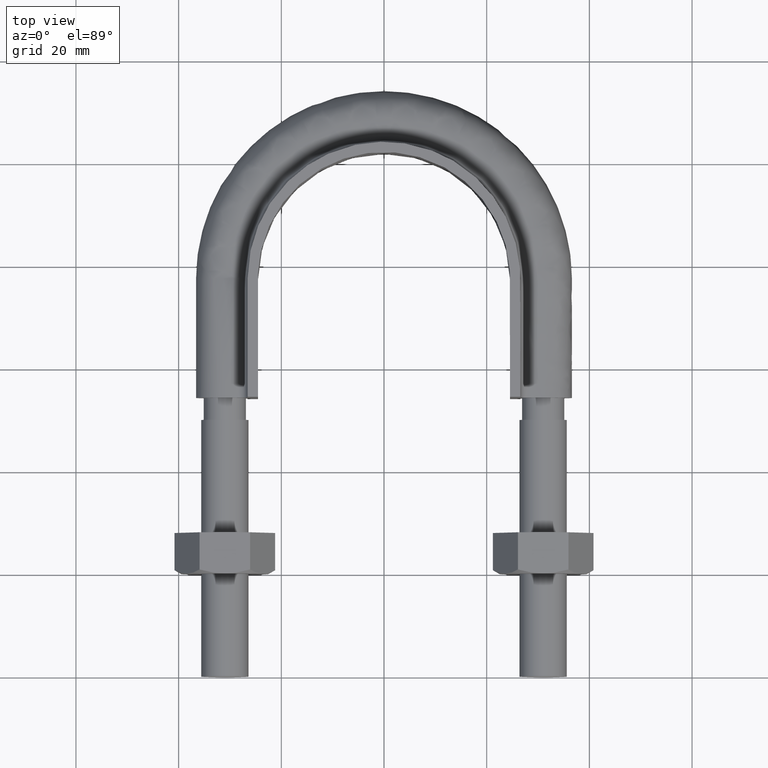
[diagram: clean part render]
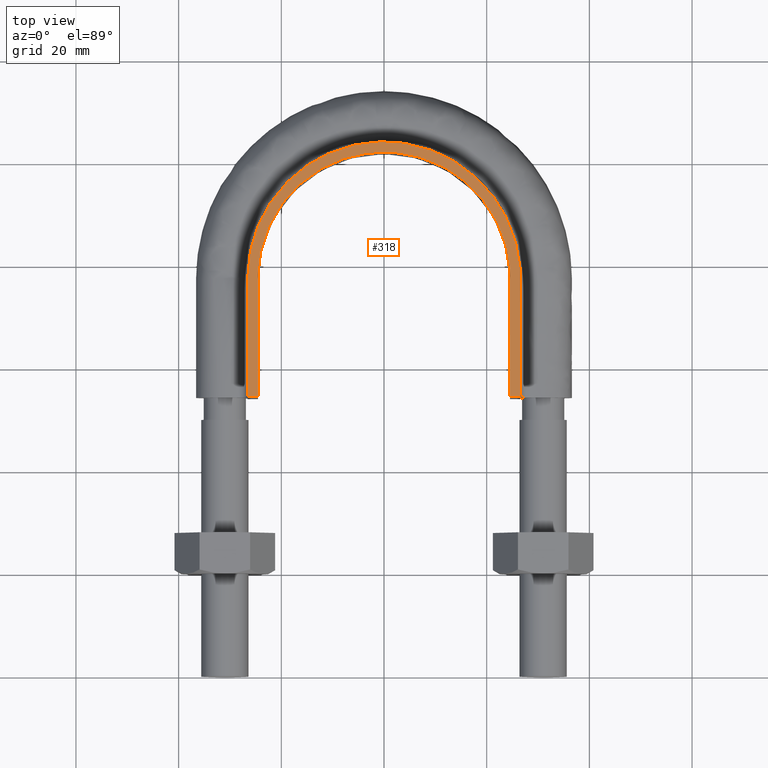
[diagram: same view with one face highlighted and labeled with its STEP entity id]
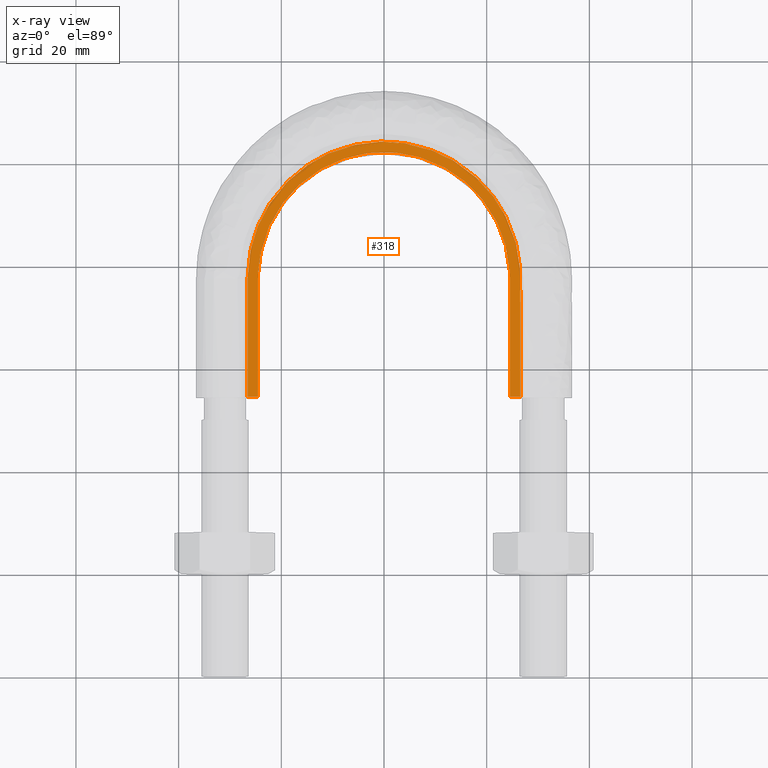
[diagram: x-ray of the same camera — body ghosted, the highlighted face saturated]
A machine part, top view. The second image highlights one B-rep face of the part: STEP entity #318.
The next image is the same camera in x-ray: the body ghosted, the highlighted face saturated — about 0% of this face is hidden behind the body in this view.
In plain terms, the highlighted planar face has unit normal (0, 0, 1).
Its self-contained STEP definition (entity closure, byte-faithful):
#318 = ADVANCED_FACE( '', ( #402 ), #403, .T. );
#402 = FACE_OUTER_BOUND( '', #577, .T. );
#403 = PLANE( '', #578 );
#577 = EDGE_LOOP( '', ( #1605, #1606, #1607, #1608 ) );
#578 = AXIS2_PLACEMENT_3D( '', #1609, #1610, #1611 );
#1605 = ORIENTED_EDGE( '', *, *, #2113, .T. );
#1606 = ORIENTED_EDGE( '', *, *, #2122, .F. );
#1607 = ORIENTED_EDGE( '', *, *, #2117, .T. );
#1608 = ORIENTED_EDGE( '', *, *, #2123, .T. );
#1609 = CARTESIAN_POINT( '', ( 40.0000000000000, 124.300000000000, 12.5000000000000 ) );
#1610 = DIRECTION( '', ( 0.000000000000000, 0.000000000000000, 1.00000000000000 ) );
#1611 = DIRECTION( '', ( 1.22460635382238E-016, 1.00000000000000, 0.000000000000000 ) );
#2113 = EDGE_CURVE( '', #2268, #2265, #2269, .T. );
#2117 = EDGE_CURVE( '', #2275, #2276, #2277, .T. );
#2122 = EDGE_CURVE( '', #2275, #2265, #2284, .T. );
#2123 = EDGE_CURVE( '', #2276, #2268, #2285, .F. );
#2265 = VERTEX_POINT( '', #2524 );
#2268 = VERTEX_POINT( '', #2528 );
#2269 = LINE( '', #2529, #2530 );
#2275 = VERTEX_POINT( '', #2576 );
#2276 = VERTEX_POINT( '', #2577 );
#2277 = LINE( '', #2578, #2579 );
#2284 = B_SPLINE_CURVE_WITH_KNOTS( '', 3, ( #2634, #2635, #2636, #2637, #2638, #2639, #2640, #2641, #2642, #2643, #2644, #2645, #2646, #2647, #2648, #2649, #2650, #2651, #2652, #2653, #2654, #2655, #2656, #2657, #2658, #2659, #2660, #2661, #2662, #2663, #2664, #2665, #2666, #2667, #2668, #2669, #2670, #2671, #2672, #2673, #2674, #2675, #2676, #2677, #2678, #2679, #2680, #2681, #2682, #2683, #2684, #2685, #2686, #2687, #2688, #2689, #2690, #2691, #2692, #2693, #2694, #2695, #2696, #2697, #2698, #2699, #2700 ), .UNSPECIFIED., .F., .F., ( 4, 1, 2, 2, 2, 2, 2, 2, 2, 2, 2, 2, 2, 2, 2, 2, 2, 2, 2, 2, 2, 2, 2, 2, 2, 2, 2, 2, 2, 2, 2, 2, 1, 1, 4 ), ( 0.000000000000000, 0.0154145326467005, 0.0231217989700507, 0.0250486155508883, 0.0269754321317259, 0.0308290652934011, 0.0346826984550763, 0.0366095150359139, 0.0385363316167515, 0.0423899647784266, 0.0443167813592642, 0.0462435979401018, 0.0500972311017769, 0.0520240476826145, 0.0539508642634520, 0.0578044974251271, 0.0597313140059646, 0.0616581305868022, 0.0655117637484773, 0.0674385803293148, 0.0693653969101523, 0.0732190300718274, 0.0751458466526650, 0.0770726632335025, 0.0809262963951776, 0.0828531129760152, 0.0847799295568527, 0.0924871958802029, 0.0944140124610405, 0.0963408290418780, 0.100194462203553, 0.102121278784391, 0.104048095365228, 0.107901728526903, 0.123316261173604 ), .UNSPECIFIED. );
#2285 = B_SPLINE_CURVE_WITH_KNOTS( '', 3, ( #2701, #2702, #2703, #2704, #2705, #2706, #2707, #2708, #2709, #2710, #2711, #2712, #2713, #2714, #2715, #2716, #2717 ), .UNSPECIFIED., .F., .F., ( 4, 3, 1, 1, 1, 1, 1, 1, 1, 3, 4 ), ( 0.145756457564576, 1.00000000000000, 1.50000000000000, 2.00000000000000, 3.00000000000000, 4.00000000000000, 5.00000000000000, 6.00000000000000, 6.50000000000000, 7.00000000000000, 7.85424354243542 ), .UNSPECIFIED. );
#2524 = CARTESIAN_POINT( '', ( -24.5500000000000, 54.3000000000000, 12.5000000000000 ) );
#2528 = CARTESIAN_POINT( '', ( -26.5500000000000, 54.3000000000000, 12.5000000000000 ) );
#2529 = CARTESIAN_POINT( '', ( -40.0000000000000, 54.3000000000000, 12.5000000000000 ) );
#2530 = VECTOR( '', #3176, 1000.00000000000 );
#2576 = CARTESIAN_POINT( '', ( 24.5500000000000, 54.3000000000000, 12.5000000000000 ) );
#2577 = CARTESIAN_POINT( '', ( 26.5500000000000, 54.3000000000000, 12.5000000000000 ) );
#2578 = CARTESIAN_POINT( '', ( -40.0000000000000, 54.3000000000000, 12.5000000000000 ) );
#2579 = VECTOR( '', #3178, 1000.00000000000 );
#2634 = CARTESIAN_POINT( '', ( 24.5500000000000, 54.3000000000000, 12.5000000000000 ) );
#2635 = CARTESIAN_POINT( '', ( 24.5500000000000, 59.4384221999800, 12.5000000000000 ) );
#2636 = CARTESIAN_POINT( '', ( 24.5500000000000, 67.1460554999500, 12.5000000000000 ) );
#2637 = CARTESIAN_POINT( '', ( 24.5500000000000, 74.8536887999200, 12.5000000000000 ) );
#2638 = CARTESIAN_POINT( '', ( 24.5500000000000, 78.0652026749075, 12.5000000000000 ) );
#2639 = CARTESIAN_POINT( '', ( 24.5252751330927, 78.7072641688935, 12.5000000000000 ) );
#2640 = CARTESIAN_POINT( '', ( 24.4234462537603, 79.9908760077758, 12.5000000000000 ) );
#2641 = CARTESIAN_POINT( '', ( 24.3467657946690, 80.6342202589337, 12.5000000000000 ) );
#2642 = CARTESIAN_POINT( '', ( 24.0418819320212, 82.5512040485105, 12.5000000000000 ) );
#2643 = CARTESIAN_POINT( '', ( 23.7423938741594, 83.7980756143651, 12.5000000000000 ) );
#2644 = CARTESIAN_POINT( '', ( 22.9567434107525, 86.2314557302550, 12.5000000000000 ) );
#2645 = CARTESIAN_POINT( '', ( 22.4705596365818, 87.4179573705317, 12.5000000000000 ) );
#2646 = CARTESIAN_POINT( '', ( 21.5925627875953, 89.1496193486760, 12.5000000000000 ) );
#2647 = CARTESIAN_POINT( '', ( 21.2766071075014, 89.7149736051725, 12.5000000000000 ) );
#2648 = CARTESIAN_POINT( '', ( 20.6053719022684, 90.8105348664258, 12.5000000000000 ) );
#2649 = CARTESIAN_POINT( '', ( 20.2492833691970, 91.3426982596921, 12.5000000000000 ) );
#2650 = CARTESIAN_POINT( '', ( 19.1215068537777, 92.8937876646727, 12.5000000000000 ) );
#2651 = CARTESIAN_POINT( '', ( 18.2907926568853, 93.8676826796255, 12.5000000000000 ) );
#2652 = CARTESIAN_POINT( '', ( 16.9250762587395, 95.2372481605127, 12.5000000000000 ) );
#2653 = CARTESIAN_POINT( '', ( 16.4483141734126, 95.6794580763296, 12.5000000000000 ) );
#2654 = CARTESIAN_POINT( '', ( 15.4703087185621, 96.5179842065182, 12.5000000000000 ) );
#2655 = CARTESIAN_POINT( '', ( 14.9674075928234, 96.9161548866917, 12.5000000000000 ) );
#2656 = CARTESIAN_POINT( '', ( 13.4174319314452, 98.0480315871901, 12.5000000000000 ) );
#2657 = CARTESIAN_POINT( '', ( 12.3291014903936, 98.7191271240917, 12.5000000000000 ) );
#2658 = CARTESIAN_POINT( '', ( 10.6113550739498, 99.5963928065053, 12.5000000000000 ) );
#2659 = CARTESIAN_POINT( '', ( 10.0221200459752, 99.8683847934331, 12.5000000000000 ) );
#2660 = CARTESIAN_POINT( '', ( 8.82789979738713, 100.363314078471, 12.5000000000000 ) );
#2661 = CARTESIAN_POINT( '', ( 8.22453257139357, 100.585861709962, 12.5000000000000 ) );
#2662 = CARTESIAN_POINT( '', ( 6.39627757875420, 101.181214530966, 12.5000000000000 ) );
#2663 = CARTESIAN_POINT( '', ( 5.15338195845830, 101.482308901390, 12.5000000000000 ) );
#2664 = CARTESIAN_POINT( '', ( 3.25266287101841, 101.789095428283, 12.5000000000000 ) );
#2665 = CARTESIAN_POINT( '', ( 2.61299113566845, 101.867071354940, 12.5000000000000 ) );
#2666 = CARTESIAN_POINT( '', ( 1.32093241036632, 101.972388560719, 12.5000000000000 ) );
#2667 = CARTESIAN_POINT( '', ( 0.676406080425042, 101.999046675169, 12.5000000000000 ) );
#2668 = CARTESIAN_POINT( '', ( -1.24870371014289, 102.001831348721, 12.5000000000000 ) );
#2669 = CARTESIAN_POINT( '', ( -2.52265182528389, 101.901467818298, 12.5000000000000 ) );
#2670 = CARTESIAN_POINT( '', ( -4.41989760294863, 101.603117496314, 12.5000000000000 ) );
#2671 = CARTESIAN_POINT( '', ( -5.05001948103532, 101.478882110562, 12.5000000000000 ) );
#2672 = CARTESIAN_POINT( '', ( -6.30559148152664, 101.179922232146, 12.5000000000000 ) );
#2673 = CARTESIAN_POINT( '', ( -6.93138081059489, 101.004801946248, 12.5000000000000 ) );
#2674 = CARTESIAN_POINT( '', ( -8.76889753233644, 100.412561446254, 12.5000000000000 ) );
#2675 = CARTESIAN_POINT( '', ( -9.95225725658830, 99.9267801345634, 12.5000000000000 ) );
#2676 = CARTESIAN_POINT( '', ( -11.6646188489648, 99.0612380840055, 12.5000000000000 ) );
#2677 = CARTESIAN_POINT( '', ( -12.2248697137770, 98.7497158527538, 12.5000000000000 ) );
#2678 = CARTESIAN_POINT( '', ( -13.3236776153922, 98.0792985269674, 12.5000000000000 ) );
#2679 = CARTESIAN_POINT( '', ( -13.8646027205756, 97.7187643121761, 12.5000000000000 ) );
#2680 = CARTESIAN_POINT( '', ( -15.4323331862349, 96.5816103428784, 12.5000000000000 ) );
#2681 = CARTESIAN_POINT( '', ( -16.4066904175185, 95.7499313198934, 12.5000000000000 ) );
#2682 = CARTESIAN_POINT( '', ( -17.7664797273136, 94.3966709647585, 12.5000000000000 ) );
#2683 = CARTESIAN_POINT( '', ( -18.2026751411942, 93.9278462929921, 12.5000000000000 ) );
#2684 = CARTESIAN_POINT( '', ( -19.0403725195660, 92.9541411916241, 12.5000000000000 ) );
#2685 = CARTESIAN_POINT( '', ( -19.4425779981798, 92.4483024401624, 12.5000000000000 ) );
#2686 = CARTESIAN_POINT( '', ( -21.3557319354796, 89.8353834350349, 12.5000000000000 ) );
#2687 = CARTESIAN_POINT( '', ( -22.5176023500941, 87.5595033352519, 12.5000000000000 ) );
#2688 = CARTESIAN_POINT( '', ( -23.5216696114527, 84.4890361381941, 12.5000000000000 ) );
#2689 = CARTESIAN_POINT( '', ( -23.6990122608683, 83.8647462965356, 12.5000000000000 ) );
#2690 = CARTESIAN_POINT( '', ( -24.0024245935730, 82.6147239867792, 12.5000000000000 ) );
#2691 = CARTESIAN_POINT( '', ( -24.1294131227665, 81.9864283058244, 12.5000000000000 ) );
#2692 = CARTESIAN_POINT( '', ( -24.4371992964721, 80.0918170449201, 12.5000000000000 ) );
#2693 = CARTESIAN_POINT( '', ( -24.5457173567177, 78.8158968179807, 12.5000000000000 ) );
#2694 = CARTESIAN_POINT( '', ( -24.5519571685428, 76.8812155098233, 12.5000000000000 ) );
#2695 = CARTESIAN_POINT( '', ( -24.5500000000000, 76.2357852822296, 12.5000000000000 ) );
#2696 = CARTESIAN_POINT( '', ( -24.5500000000000, 74.9454449715102, 12.5000000000000 ) );
#2697 = CARTESIAN_POINT( '', ( -24.5500000000000, 73.0099345054311, 12.5000000000000 ) );
#2698 = CARTESIAN_POINT( '', ( -24.5500000000000, 65.9130627964745, 12.5000000000000 ) );
#2699 = CARTESIAN_POINT( '', ( -24.5500000000000, 59.4613612428776, 12.5000000000000 ) );
#2700 = CARTESIAN_POINT( '', ( -24.5500000000000, 54.3000000000000, 12.5000000000000 ) );
#2701 = CARTESIAN_POINT( '', ( -26.5500000000000, 54.3000000000000, 12.5000000000000 ) );
#2702 = CARTESIAN_POINT( '', ( -26.5500000000000, 62.0166666666667, 12.5000000000000 ) );
#2703 = CARTESIAN_POINT( '', ( -26.5500000000000, 69.7333333333333, 12.5000000000000 ) );
#2704 = CARTESIAN_POINT( '', ( -26.5500000000000, 77.4500000000000, 12.5000000000000 ) );
#2705 = CARTESIAN_POINT( '', ( -26.5500000000000, 79.7566352991258, 12.5000000000000 ) );
#2706 = CARTESIAN_POINT( '', ( -25.9278217826460, 84.4015410955847, 12.5000000000000 ) );
#2707 = CARTESIAN_POINT( '', ( -22.3733615438456, 93.0387447403505, 12.5000000000000 ) );
#2708 = CARTESIAN_POINT( '', ( -13.8952542493119, 101.518591858921, 12.5000000000000 ) );
#2709 = CARTESIAN_POINT( '', ( 2.02604182614537E-014, 105.240704070539, 12.5000000000000 ) );
#2710 = CARTESIAN_POINT( '', ( 13.8952542493119, 101.518591858921, 12.5000000000000 ) );
#2711 = CARTESIAN_POINT( '', ( 22.3733615438457, 93.0387447403505, 12.5000000000000 ) );
#2712 = CARTESIAN_POINT( '', ( 25.9278217826460, 84.4015410955847, 12.5000000000000 ) );
#2713 = CARTESIAN_POINT( '', ( 26.5500000000000, 79.7566352991258, 12.5000000000000 ) );
#2714 = CARTESIAN_POINT( '', ( 26.5500000000000, 77.4500000000000, 12.5000000000000 ) );
#2715 = CARTESIAN_POINT( '', ( 26.5500000000000, 69.7333333333333, 12.5000000000000 ) );
#2716 = CARTESIAN_POINT( '', ( 26.5500000000000, 62.0166666666667, 12.5000000000000 ) );
#2717 = CARTESIAN_POINT( '', ( 26.5500000000000, 54.3000000000000, 12.5000000000000 ) );
#3176 = DIRECTION( '', ( 1.00000000000000, -1.22460635382238E-016, 0.000000000000000 ) );
#3178 = DIRECTION( '', ( 1.00000000000000, -1.22460635382238E-016, 0.000000000000000 ) );